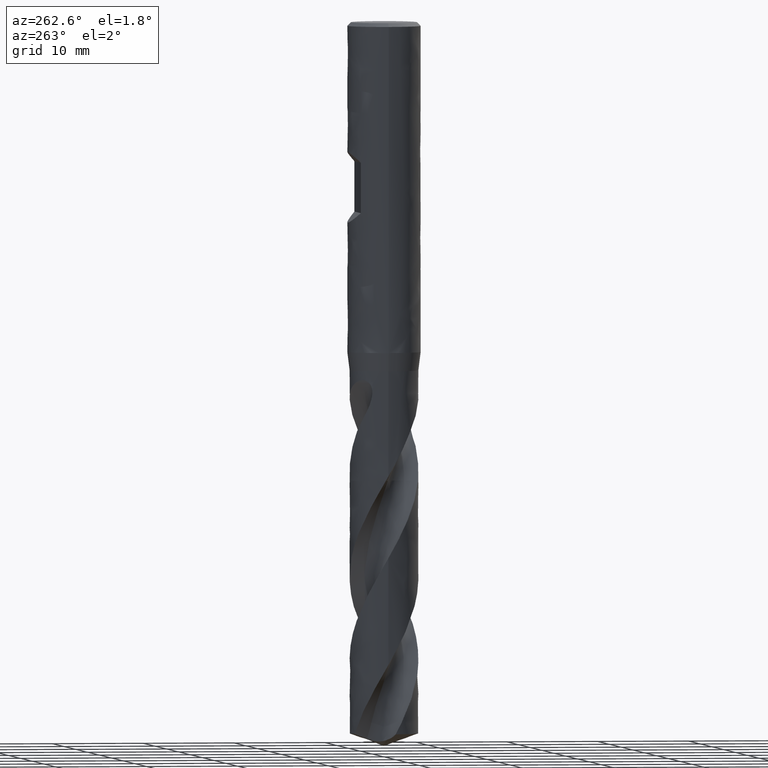
[diagram: clean part render]
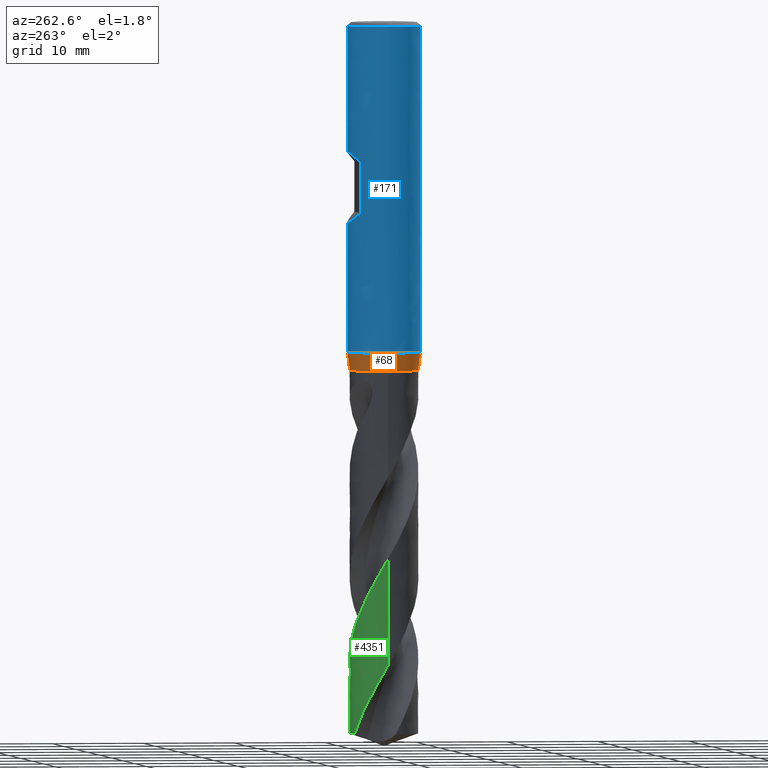
[diagram: same view with three faces highlighted in distinct colors, each labeled with its STEP entity id]
A machine part, auxiliary view with three faces highlighted in distinct colors.
Their STEP definitions:

[orange] entity #68 — the highlighted face is a freeform B-spline surface patch.
#68 = ADVANCED_FACE('', (#69), #96, .T.);
#69 = FACE_OUTER_BOUND('', #70, .T.);
#70 = EDGE_LOOP('', (#71, #81, #88, #89));
#71 = ORIENTED_EDGE('', *, *, #72, .F.);
#72 = EDGE_CURVE('', #73, #75, #77, .T.);
#73 = VERTEX_POINT('', #74);
#74 = CARTESIAN_POINT('', (-4., 2.44929359829471E-15, -36.));
#75 = VERTEX_POINT('', #76);
#76 = CARTESIAN_POINT('', (-3.75, 2.5564501932201E-15, -38.));
#77 = LINE('', #78, #79);
#78 = CARTESIAN_POINT('', (-4., 2.44929359829471E-15, -36.));
#79 = VECTOR('', #80, 2.01556443707464);
#80 = DIRECTION('', (0.25, 1.07156594925393E-16, -2.));
#81 = ORIENTED_EDGE('', *, *, #82, .T.);
#82 = EDGE_CURVE('', #73, #73, #83, .T.);
#83 = CIRCLE('', #84, 4.);
#84 = AXIS2_PLACEMENT_3D('', #85, #86, #87);
#85 = CARTESIAN_POINT('', (1.34978380439567E-31, 2.20436423846524E-15, -36.));
#86 = DIRECTION('', (3.74939945665464E-33, 6.12323399573677E-17, -1.));
#87 = DIRECTION('', (-1., 6.12323399573677E-17, 0.));
#88 = ORIENTED_EDGE('', *, *, #72, .T.);
#89 = ORIENTED_EDGE('', *, *, #90, .F.);
#90 = EDGE_CURVE('', #75, #75, #91, .T.);
#91 = CIRCLE('', #92, 3.75);
#92 = AXIS2_PLACEMENT_3D('', #93, #94, #95);
#93 = CARTESIAN_POINT('', (1.42477179352876E-31, 2.32682891837997E-15, -38.));
#94 = DIRECTION('', (3.74939945665464E-33, 6.12323399573677E-17, -1.));
#95 = DIRECTION('', (-1., 6.12323399573677E-17, 0.));
#96 = (
   BOUNDED_SURFACE ()
   B_SPLINE_SURFACE (2, 1, ((#97, #98), (#99, #100), (#101, #102), (#103, #104), (#105, #106), (#107, #108), (#109, #110), (#111, #112), (#113, #114)), .UNSPECIFIED., .T., .F., .U.)
   B_SPLINE_SURFACE_WITH_KNOTS ((3, 2, 2, 2, 3), (2, 2), (0., 0.25, 0.5, 0.75, 1.), (0., 1.), .UNSPECIFIED.)
   GEOMETRIC_REPRESENTATION_ITEM ()
   RATIONAL_B_SPLINE_SURFACE (((1., 1.), (0.707106781186548, 0.707106781186548), (1., 1.), (0.707106781186548, 0.707106781186548), (1., 1.), (0.707106781186548, 0.707106781186548), (1., 1.), (0.707106781186548, 0.707106781186548), (1., 1.)))
   REPRESENTATION_ITEM ('')
   SURFACE ()
);
#97 = CARTESIAN_POINT('', (-4., 2.44929359829471E-15, -36.));
#98 = CARTESIAN_POINT('', (-3.75, 2.5564501932201E-15, -38.));
#99 = CARTESIAN_POINT('', (-4., 4., -36.));
#100 = CARTESIAN_POINT('', (-3.75, 3.75, -38.));
#101 = CARTESIAN_POINT('', (9.86076131526265E-32, 4., -36.));
#102 = CARTESIAN_POINT('', (1.4791141972894E-31, 3.75, -38.));
#103 = CARTESIAN_POINT('', (4., 4., -36.));
#104 = CARTESIAN_POINT('', (3.75, 3.75, -38.));
#105 = CARTESIAN_POINT('', (4., 2.44929359829471E-15, -36.));
#106 = CARTESIAN_POINT('', (3.75, 2.5564501932201E-15, -38.));
#107 = CARTESIAN_POINT('', (4., -4., -36.));
#108 = CARTESIAN_POINT('', (3.75, -3.75, -38.));
#109 = CARTESIAN_POINT('', (4.89858719658941E-16, -4., -36.));
#110 = CARTESIAN_POINT('', (4.59242549680258E-16, -3.75, -38.));
#111 = CARTESIAN_POINT('', (-4., -4., -36.));
#112 = CARTESIAN_POINT('', (-3.75, -3.75, -38.));
#113 = CARTESIAN_POINT('', (-4., 2.44929359829471E-15, -36.));
#114 = CARTESIAN_POINT('', (-3.75, 2.5564501932201E-15, -38.));

[blue] entity #171 — the highlighted face is a freeform B-spline surface patch.
#73 = VERTEX_POINT('', #74);
#74 = CARTESIAN_POINT('', (-4., 2.44929359829471E-15, -36.));
#82 = EDGE_CURVE('', #73, #73, #83, .T.);
#83 = CIRCLE('', #84, 4.);
#84 = AXIS2_PLACEMENT_3D('', #85, #86, #87);
#85 = CARTESIAN_POINT('', (1.34978380439567E-31, 2.20436423846524E-15, -36.));
#86 = DIRECTION('', (3.74939945665464E-33, 6.12323399573677E-17, -1.));
#87 = DIRECTION('', (-1., 6.12323399573677E-17, 0.));
#120 = VERTEX_POINT('', #121);
#121 = CARTESIAN_POINT('', (-4., 2.69422295812418E-16, -0.399999999999999));
#137 = EDGE_CURVE('', #120, #120, #138, .T.);
#138 = CIRCLE('', #139, 4.);
#139 = AXIS2_PLACEMENT_3D('', #140, #141, #142);
#140 = CARTESIAN_POINT('', (1.49975978266185E-33, 2.44929359829471E-17, -0.399999999999999));
#141 = DIRECTION('', (3.74939945665464E-33, 6.12323399573677E-17, -1.));
#142 = DIRECTION('', (-1., 6.12323399573677E-17, 0.));
#171 = ADVANCED_FACE('', (#172, #183), #354, .T.);
#172 = FACE_OUTER_BOUND('', #173, .T.);
#173 = EDGE_LOOP('', (#174, #180, #181, #182));
#174 = ORIENTED_EDGE('', *, *, #175, .T.);
#175 = EDGE_CURVE('', #73, #120, #176, .T.);
#176 = LINE('', #177, #178);
#177 = CARTESIAN_POINT('', (-4., 2.44929359829471E-15, -36.));
#178 = VECTOR('', #179, 35.6);
#179 = DIRECTION('', (0., -2.17987130248229E-15, 35.6));
#180 = ORIENTED_EDGE('', *, *, #137, .T.);
#181 = ORIENTED_EDGE('', *, *, #175, .F.);
#182 = ORIENTED_EDGE('', *, *, #82, .F.);
#183 = FACE_BOUND('', #184, .T.);
#184 = EDGE_LOOP('', (#185, #195, #270, #278));
#185 = ORIENTED_EDGE('', *, *, #186, .F.);
#186 = EDGE_CURVE('', #187, #189, #191, .T.);
#187 = VERTEX_POINT('', #188);
#188 = CARTESIAN_POINT('', (2.75499546279118, 2.9, -15.25));
#189 = VERTEX_POINT('', #190);
#190 = CARTESIAN_POINT('', (2.75499546279118, 2.9, -20.75));
#191 = LINE('', #192, #193);
#192 = CARTESIAN_POINT('', (2.75499546279118, 2.9, -15.25));
#193 = VECTOR('', #194, 5.5);
#194 = DIRECTION('', (0., 8.88178419700125E-16, -5.5));
#195 = ORIENTED_EDGE('', *, *, #196, .F.);
#196 = EDGE_CURVE('', #197, #187, #199, .T.);
#197 = VERTEX_POINT('', #198);
#198 = CARTESIAN_POINT('', (-2.75499546279118, 2.9, -15.25));
#199 = B_SPLINE_CURVE_WITH_KNOTS('', 3, (#200, #201, #202, #203, #204, #205, #206, #207, #208, #209, #210, #211, #212, #213, #214, #215, #216, #217, #218, #219, #220, #221, #222, #223, #224, #225, #226, #227, #228, #229, #230, #231, #232, #233, #234, #235, #236, #237, #238, #239, #240, #241, #242, #243, #244, #245, #246, #247, #248, #249, #250, #251, #252, #253, #254, #255, #256, #257, #258, #259, #260, #261, #262, #263, #264, #265, #266, #267, #268, #269), .UNSPECIFIED., .F., .U., (4, 3, 3, 3, 3, 3, 3, 3, 3, 3, 3, 3, 3, 3, 3, 3, 3, 3, 3, 3, 3, 3, 3, 4), (0., 0.0275651498824212, 0.323329754227846, 0.619223800657679, 0.915270205533212, 1.21149541087732, 1.50792863848376, 1.80460015310044, 2.10153821450145, 2.39876467460959, 2.69628978664823, 2.99410761532925, 3.29009749181974, 3.58608736831022, 3.88390519699124, 4.18143030902988, 4.47865676913802, 4.77559483053904, 5.07226634515571, 5.36869957276216, 5.66492477810626, 5.96097118298179, 6.25686522941163, 6.58019498363947), .UNSPECIFIED.);
#200 = CARTESIAN_POINT('', (-2.75499546279118, 2.9, -15.25));
#201 = CARTESIAN_POINT('', (-2.7495403313511, 2.90518236633323, -15.2447263857062));
#202 = CARTESIAN_POINT('', (-2.74406521982218, 2.91035442984719, -15.2394632556375));
#203 = CARTESIAN_POINT('', (-2.73857013102126, 2.91551601564427, -15.2342107877709));
#204 = CARTESIAN_POINT('', (-2.67960971281275, 2.97089806100158, -15.1778536089774));
#205 = CARTESIAN_POINT('', (-2.61831798837026, 3.0251023412273, -15.122694932689));
#206 = CARTESIAN_POINT('', (-2.55471049779373, 3.07789770337849, -15.0689699818493));
#207 = CARTESIAN_POINT('', (-2.49107516924727, 3.13071617154582, -15.0152215181567));
#208 = CARTESIAN_POINT('', (-2.42505948854959, 3.18217572696542, -14.9628558941227));
#209 = CARTESIAN_POINT('', (-2.35670846888833, 3.23201565476873, -14.9121384151248));
#210 = CARTESIAN_POINT('', (-2.28832225468618, 3.28188124558901, -14.8613948212512));
#211 = CARTESIAN_POINT('', (-2.21752118151808, 3.33018085032992, -14.8122447863892));
#212 = CARTESIAN_POINT('', (-2.14439231660005, 3.37662280874054, -14.7649851061665));
#213 = CARTESIAN_POINT('', (-2.07121928470314, 3.42309281628059, -14.7176968829422));
#214 = CARTESIAN_POINT('', (-1.99562068806062, 3.46776202565152, -14.6722411652482));
#215 = CARTESIAN_POINT('', (-1.91774147403304, 3.51030876687135, -14.628945286836));
#216 = CARTESIAN_POINT('', (-1.83980756982381, 3.55288538626901, -14.5856190041692));
#217 = CARTESIAN_POINT('', (-1.75947339354896, 3.59339861346788, -14.5443924446584));
#218 = CARTESIAN_POINT('', (-1.6769604661359, 3.63150156202879, -14.5056186025088));
#219 = CARTESIAN_POINT('', (-1.59438121093989, 3.66963513953696, -14.466813592116));
#220 = CARTESIAN_POINT('', (-1.50947809076678, 3.70541802112886, -14.4304006672663));
#221 = CARTESIAN_POINT('', (-1.42256919709379, 3.73848858223215, -14.3967478197978));
#222 = CARTESIAN_POINT('', (-1.33558221946264, 3.77158885583323, -14.363064736672));
#223 = CARTESIAN_POINT('', (-1.2464160027603, 3.80203429897799, -14.3320832286455));
#224 = CARTESIAN_POINT('', (-1.15550315645899, 3.82946634081219, -14.3041681800707));
#225 = CARTESIAN_POINT('', (-1.06450201178593, 3.85692502579669, -14.2762260192292));
#226 = CARTESIAN_POINT('', (-0.971551110465514, 3.88142225604713, -14.251297456619));
#227 = CARTESIAN_POINT('', (-0.877208103576912, 3.90262808156492, -14.2297182517981));
#228 = CARTESIAN_POINT('', (-0.782770301221156, 3.92385521460939, -14.2081173642804));
#229 = CARTESIAN_POINT('', (-0.686708873945093, 3.94183334457734, -14.1898226863132));
#230 = CARTESIAN_POINT('', (-0.589703064917672, 3.95629249363931, -14.1751089493317));
#231 = CARTESIAN_POINT('', (-0.492601817846333, 3.97076586816795, -14.1603807364101));
#232 = CARTESIAN_POINT('', (-0.394300865590992, 3.98174917183471, -14.1492040453995));
#233 = CARTESIAN_POINT('', (-0.295578376007088, 3.98906422906892, -14.141760189078));
#234 = CARTESIAN_POINT('', (-0.197461827282699, 3.99633438779939, -14.1343620218057));
#235 = CARTESIAN_POINT('', (-0.0986632921634952, 4., -14.1306318677307));
#236 = CARTESIAN_POINT('', (1.22464679914735E-16, 4., -14.1306318677307));
#237 = CARTESIAN_POINT('', (0.0986632921634953, 4., -14.1306318677307));
#238 = CARTESIAN_POINT('', (0.197461827282699, 3.99633438779939, -14.1343620218057));
#239 = CARTESIAN_POINT('', (0.295578376007088, 3.98906422906892, -14.1417601890779));
#240 = CARTESIAN_POINT('', (0.394300865590992, 3.98174917183471, -14.1492040453995));
#241 = CARTESIAN_POINT('', (0.492601817846333, 3.97076586816795, -14.1603807364101));
#242 = CARTESIAN_POINT('', (0.589703064917672, 3.95629249363931, -14.1751089493317));
#243 = CARTESIAN_POINT('', (0.686708873945093, 3.94183334457734, -14.1898226863132));
#244 = CARTESIAN_POINT('', (0.782770301221157, 3.92385521460939, -14.2081173642804));
#245 = CARTESIAN_POINT('', (0.877208103576914, 3.90262808156492, -14.2297182517981));
#246 = CARTESIAN_POINT('', (0.971551110465516, 3.88142225604713, -14.251297456619));
#247 = CARTESIAN_POINT('', (1.06450201178593, 3.85692502579669, -14.2762260192292));
#248 = CARTESIAN_POINT('', (1.15550315645899, 3.82946634081219, -14.3041681800707));
#249 = CARTESIAN_POINT('', (1.2464160027603, 3.80203429897799, -14.3320832286456));
#250 = CARTESIAN_POINT('', (1.33558221946264, 3.77158885583323, -14.363064736672));
#251 = CARTESIAN_POINT('', (1.4225691970938, 3.73848858223215, -14.3967478197978));
#252 = CARTESIAN_POINT('', (1.50947809076678, 3.70541802112886, -14.4304006672663));
#253 = CARTESIAN_POINT('', (1.59438121093989, 3.66963513953696, -14.466813592116));
#254 = CARTESIAN_POINT('', (1.6769604661359, 3.63150156202879, -14.5056186025088));
#255 = CARTESIAN_POINT('', (1.75947339354897, 3.59339861346788, -14.5443924446584));
#256 = CARTESIAN_POINT('', (1.83980756982381, 3.55288538626901, -14.5856190041692));
#257 = CARTESIAN_POINT('', (1.91774147403305, 3.51030876687135, -14.628945286836));
#258 = CARTESIAN_POINT('', (1.99562068806062, 3.46776202565152, -14.6722411652482));
#259 = CARTESIAN_POINT('', (2.07121928470315, 3.42309281628059, -14.7176968829422));
#260 = CARTESIAN_POINT('', (2.14439231660006, 3.37662280874054, -14.7649851061665));
#261 = CARTESIAN_POINT('', (2.21752118151808, 3.33018085032992, -14.8122447863892));
#262 = CARTESIAN_POINT('', (2.28832225468618, 3.28188124558901, -14.8613948212512));
#263 = CARTESIAN_POINT('', (2.35670846888833, 3.23201565476873, -14.9121384151248));
#264 = CARTESIAN_POINT('', (2.42505948854959, 3.18217572696542, -14.9628558941227));
#265 = CARTESIAN_POINT('', (2.49107516924727, 3.13071617154582, -15.0152215181567));
#266 = CARTESIAN_POINT('', (2.55471049779373, 3.07789770337849, -15.0689699818493));
#267 = CARTESIAN_POINT('', (2.62424618256803, 3.02018183333213, -15.1277020779003));
#268 = CARTESIAN_POINT('', (2.69100864192036, 2.9607873797164, -15.1881423130012));
#269 = CARTESIAN_POINT('', (2.75499546279118, 2.9, -15.25));
#270 = ORIENTED_EDGE('', *, *, #271, .T.);
#271 = EDGE_CURVE('', #197, #272, #274, .T.);
#272 = VERTEX_POINT('', #273);
#273 = CARTESIAN_POINT('', (-2.75499546279118, 2.9, -20.75));
#274 = LINE('', #275, #276);
#275 = CARTESIAN_POINT('', (-2.75499546279118, 2.9, -15.25));
#276 = VECTOR('', #277, 5.5);
#277 = DIRECTION('', (0., 0., -5.5));
#278 = ORIENTED_EDGE('', *, *, #279, .T.);
#279 = EDGE_CURVE('', #272, #189, #280, .T.);
#280 = B_SPLINE_CURVE_WITH_KNOTS('', 3, (#281, #282, #283, #284, #285, #286, #287, #288, #289, #290, #291, #292, #293, #294, #295, #296, #297, #298, #299, #300, #301, #302, #303, #304, #305, #306, #307, #308, #309, #310, #311, #312, #313, #314, #315, #316, #317, #318, #319, #320, #321, #322, #323, #324, #325, #326, #327, #328, #329, #330, #331, #332, #333, #334, #335, #336, #337, #338, #339, #340, #341, #342, #343, #344, #345, #346, #347, #348, #349, #350, #351, #352, #353), .UNSPECIFIED., .F., .U., (4, 3, 3, 3, 3, 3, 3, 3, 3, 3, 3, 3, 3, 3, 3, 3, 3, 3, 3, 3, 3, 3, 3, 3, 4), (0., 0.443422422205693, 0.738860713972591, 1.03418677767532, 1.32938252694556, 1.62442725505235, 1.91929816542727, 2.21397155727197, 2.50842487936361, 2.80263970976592, 2.9989408510487, 3.29007345814309, 3.4872474966482, 3.68530175003223, 3.8832746562229, 4.08116298771897, 4.27896576611938, 4.57609603156437, 4.872944030885, 5.16953426674175, 5.46589607815955, 5.76205965537, 6.05805344567497, 6.35390278155854, 6.58042418211351), .UNSPECIFIED.);
#281 = CARTESIAN_POINT('', (-2.75499546279118, 2.9, -20.75));
#282 = CARTESIAN_POINT('', (-2.66724235399505, 2.98336531606178, -20.8348331619419));
#283 = CARTESIAN_POINT('', (-2.57422027727393, 3.06415258604797, -20.9170428851383));
#284 = CARTESIAN_POINT('', (-2.47599571183059, 3.14156732141782, -20.9958206921756));
#285 = CARTESIAN_POINT('', (-2.41055180017683, 3.19314630351234, -21.048307845677));
#286 = CARTESIAN_POINT('', (-2.34271971299793, 3.24329045867949, -21.0993349086891));
#287 = CARTESIAN_POINT('', (-2.27255949630797, 3.2917280166716, -21.1486253257994));
#288 = CARTESIAN_POINT('', (-2.20242593136059, 3.34014717470163, -21.1978970189722));
#289 = CARTESIAN_POINT('', (-2.12988274348655, 3.38691749931397, -21.2454908470694));
#290 = CARTESIAN_POINT('', (-2.05503738469365, 3.43173736575396, -21.2910998745108));
#291 = CARTESIAN_POINT('', (-1.98022505187324, 3.47653745515367, -21.3366887766898));
#292 = CARTESIAN_POINT('', (-1.90301056261523, 3.519448580392, -21.3803554549731));
#293 = CARTESIAN_POINT('', (-1.82356518022225, 3.56014185580879, -21.4217652328814));
#294 = CARTESIAN_POINT('', (-1.74416044182265, 3.60081431268124, -21.4631538256852));
#295 = CARTESIAN_POINT('', (-1.66240289395493, 3.63933314650406, -21.502350875752));
#296 = CARTESIAN_POINT('', (-1.5785460472355, 3.67534928636152, -21.5390011659373));
#297 = CARTESIAN_POINT('', (-1.4947386025406, 3.71134420827083, -21.5756298645816));
#298 = CARTESIAN_POINT('', (-1.40868478848897, 3.74490161629374, -21.6097781310747));
#299 = CARTESIAN_POINT('', (-1.32073858060278, 3.77566545150764, -21.6410836372246));
#300 = CARTESIAN_POINT('', (-1.23285128326053, 3.80640867964468, -21.6723681734607));
#301 = CARTESIAN_POINT('', (-1.14289702732146, 3.83442177081428, -21.7008745021349));
#302 = CARTESIAN_POINT('', (-1.0513442293651, 3.85936203424631, -21.726253898586));
#303 = CARTESIAN_POINT('', (-0.959859805419417, 3.88428367164094, -21.7516143410437));
#304 = CARTESIAN_POINT('', (-0.866574202102869, 3.90619059125, -21.7739069843951));
#305 = CARTESIAN_POINT('', (-0.772074452714003, 3.92478038104902, -21.7928240919284));
#306 = CARTESIAN_POINT('', (-0.677651243147182, 3.94335511409697, -21.8117258776005));
#307 = CARTESIAN_POINT('', (-0.581785251603101, 3.95866134366949, -21.827301609972));
#308 = CARTESIAN_POINT('', (-0.485170882582414, 3.97046712802094, -21.8393152634078));
#309 = CARTESIAN_POINT('', (-0.420709445077232, 3.97834398772498, -21.8473308140761));
#310 = CARTESIAN_POINT('', (-0.355823858528567, 3.98467660623896, -21.8537749334927));
#311 = CARTESIAN_POINT('', (-0.29074100732762, 3.98941971552983, -21.8586015565728));
#312 = CARTESIAN_POINT('', (-0.194217166337957, 3.99645418188373, -21.8657598815401));
#313 = CARTESIAN_POINT('', (-0.0970442023647982, 4., -21.8693681322693));
#314 = CARTESIAN_POINT('', (1.22464679914735E-16, 4., -21.8693681322693));
#315 = CARTESIAN_POINT('', (0.0657246795017049, 4., -21.8693681322693));
#316 = CARTESIAN_POINT('', (0.131489701268733, 3.99837709119683, -21.8677166482731));
#317 = CARTESIAN_POINT('', (0.197052250671387, 3.99514335293558, -21.8644259723115));
#318 = CARTESIAN_POINT('', (0.262907481260272, 3.9918951787752, -21.8611206062723));
#319 = CARTESIAN_POINT('', (0.32863921924959, 3.98701784499982, -21.8561573953644));
#320 = CARTESIAN_POINT('', (0.394008672407501, 3.98054734503531, -21.8495729667643));
#321 = CARTESIAN_POINT('', (0.459351276247839, 3.97407950271135, -21.8429912425989));
#322 = CARTESIAN_POINT('', (0.524410480681414, 3.96601220841524, -21.8347819042819));
#323 = CARTESIAN_POINT('', (0.58896163430491, 3.95640293616776, -21.8250034378018));
#324 = CARTESIAN_POINT('', (0.653485211457423, 3.94679776903386, -21.8152291487156));
#325 = CARTESIAN_POINT('', (0.717576028180887, 3.93564105020771, -21.8038759891568));
#326 = CARTESIAN_POINT('', (0.781028734224063, 3.92300829929231, -21.7910208084317));
#327 = CARTESIAN_POINT('', (0.844454007748155, 3.91038100989625, -21.7781711853891));
#328 = CARTESIAN_POINT('', (0.907311809061335, 3.89626530832649, -21.7638069431147));
#329 = CARTESIAN_POINT('', (0.969419520729964, 3.88075067388098, -21.7480191364037));
#330 = CARTESIAN_POINT('', (1.06271487787062, 3.85744530128533, -21.7243034169544));
#331 = CARTESIAN_POINT('', (1.1544914336299, 3.83093536499364, -21.6973267097968));
#332 = CARTESIAN_POINT('', (1.24423289780537, 3.8015634278569, -21.6674376094205));
#333 = CARTESIAN_POINT('', (1.33388910989368, 3.77221939330641, -21.6375769029223));
#334 = CARTESIAN_POINT('', (1.42170364387654, 3.73995917363383, -21.6047486648846));
#335 = CARTESIAN_POINT('', (1.50728302186432, 3.70514478691452, -21.5693212875772));
#336 = CARTESIAN_POINT('', (1.59278808829549, 3.67036063074058, -21.5339246730963));
#337 = CARTESIAN_POINT('', (1.67622194287628, 3.6329637909704, -21.4958693724724));
#338 = CARTESIAN_POINT('', (1.75730026868264, 3.59331264513516, -21.4555200733306));
#339 = CARTESIAN_POINT('', (1.83831615052138, 3.55369203736101, -21.4152018499456));
#340 = CARTESIAN_POINT('', (1.91711291663925, 3.51175746479679, -21.3725289188831));
#341 = CARTESIAN_POINT('', (1.99349629595741, 3.4678483989362, -21.3278467288449));
#342 = CARTESIAN_POINT('', (2.06982858300231, 3.42396870352257, -21.2831944263906));
#343 = CARTESIAN_POINT('', (2.14385956949714, 3.37805601840628, -21.2364733385851));
#344 = CARTESIAN_POINT('', (2.21546518868423, 3.33042249537931, -21.1880011133995));
#345 = CARTESIAN_POINT('', (2.28702975725797, 3.28281628006029, -21.1395566767395));
#346 = CARTESIAN_POINT('', (2.35626036779493, 3.23343335123207, -21.0893042432772));
#347 = CARTESIAN_POINT('', (2.42308530146576, 3.18255520326368, -21.0375302637639));
#348 = CARTESIAN_POINT('', (2.4898776224351, 3.13170188545614, -20.9857815516058));
#349 = CARTESIAN_POINT('', (2.55433855419146, 3.07930087109134, -20.9324578919889));
#350 = CARTESIAN_POINT('', (2.61643396066481, 3.02560296957151, -20.8778145104152));
#351 = CARTESIAN_POINT('', (2.66397822301836, 2.98448838054326, -20.8359760006611));
#352 = CARTESIAN_POINT('', (2.710166973946, 2.9425869942663, -20.7933368402098));
#353 = CARTESIAN_POINT('', (2.75499546279118, 2.9, -20.75));
#354 = (
   BOUNDED_SURFACE ()
   B_SPLINE_SURFACE (1, 2, ((#355, #356, #357, #358, #359, #360, #361, #362, #363), (#364, #365, #366, #367, #368, #369, #370, #371, #372)), .UNSPECIFIED., .F., .T., .U.)
   B_SPLINE_SURFACE_WITH_KNOTS ((2, 2), (3, 2, 2, 2, 3), (0., 1.), (0., 6.28318530717959, 12.5663706143592, 18.8495559215388, 25.1327412287183), .UNSPECIFIED.)
   GEOMETRIC_REPRESENTATION_ITEM ()
   RATIONAL_B_SPLINE_SURFACE (((1., 0.707106781186548, 1., 0.707106781186548, 1., 0.707106781186548, 1., 0.707106781186548, 1.), (1., 0.707106781186548, 1., 0.707106781186548, 1., 0.707106781186548, 1., 0.707106781186548, 1.)))
   REPRESENTATION_ITEM ('')
   SURFACE ()
);
#355 = CARTESIAN_POINT('', (-4., 2.44929359829471E-15, -36.));
#356 = CARTESIAN_POINT('', (-4., 4., -36.));
#357 = CARTESIAN_POINT('', (9.86076131526265E-32, 4., -36.));
#358 = CARTESIAN_POINT('', (4., 4., -36.));
#359 = CARTESIAN_POINT('', (4., 2.44929359829471E-15, -36.));
#360 = CARTESIAN_POINT('', (4., -4., -36.));
#361 = CARTESIAN_POINT('', (4.89858719658941E-16, -4., -36.));
#362 = CARTESIAN_POINT('', (-4., -4., -36.));
#363 = CARTESIAN_POINT('', (-4., 2.44929359829471E-15, -36.));
#364 = CARTESIAN_POINT('', (-4., 2.69422295812418E-16, -0.399999999999999));
#365 = CARTESIAN_POINT('', (-4., 4., -0.399999999999998));
#366 = CARTESIAN_POINT('', (0., 4., -0.399999999999998));
#367 = CARTESIAN_POINT('', (4., 4., -0.399999999999998));
#368 = CARTESIAN_POINT('', (4., 2.69422295812418E-16, -0.399999999999999));
#369 = CARTESIAN_POINT('', (4., -4., -0.399999999999999));
#370 = CARTESIAN_POINT('', (4.89858719658941E-16, -4., -0.399999999999999));
#371 = CARTESIAN_POINT('', (-4., -4., -0.399999999999999));
#372 = CARTESIAN_POINT('', (-4., 2.69422295812418E-16, -0.399999999999999));

[green] entity #4351 — the highlighted face is a freeform B-spline surface patch.
#2800 = VERTEX_POINT('', #2801);
#2801 = CARTESIAN_POINT('', (-3.75, 4.51867119545947E-15, -70.0455008514381));
#2916 = EDGE_CURVE('', #2917, #2800, #2919, .T.);
#2917 = VERTEX_POINT('', #2918);
#2918 = CARTESIAN_POINT('', (-1.5221107578736, 3.42719693638482, -77.6351116215018));
#2919 = B_SPLINE_CURVE_WITH_KNOTS('', 3, (#2920, #2921, #2922, #2923, #2924, #2925, #2926, #2927, #2928, #2929, #2930, #2931, #2932, #2933, #2934, #2935, #2936, #2937, #2938, #2939, #2940, #2941, #2942, #2943, #2944, #2945, #2946, #2947, #2948, #2949, #2950, #2951, #2952, #2953, #2954, #2955, #2956, #2957, #2958, #2959, #2960, #2961, #2962), .UNSPECIFIED., .F., .U., (4, 3, 3, 3, 3, 3, 3, 3, 3, 3, 3, 3, 3, 3, 4), (0., 0.66561593831297, 1.331069818709, 1.99636416962053, 2.66150093696938, 3.32648136471202, 3.99130600834453, 4.65597470329282, 5.32048666550956, 5.98484076220309, 6.64903524772549, 7.31306767066533, 7.97693481026115, 8.64063260041699, 8.73383498124135), .UNSPECIFIED.);
#2920 = CARTESIAN_POINT('', (-1.5221107578736, 3.42719693638482, -77.6351116215017));
#2921 = CARTESIAN_POINT('', (-1.62236692302693, 3.38267046464841, -77.4422560539828));
#2922 = CARTESIAN_POINT('', (-1.72069883412994, 3.33372664299403, -77.2493600066725));
#2923 = CARTESIAN_POINT('', (-1.81668139565207, 3.28057444766792, -77.0565145574775));
#2924 = CARTESIAN_POINT('', (-1.91264058824163, 3.2274351933391, -76.8637160604811));
#2925 = CARTESIAN_POINT('', (-2.00629581587175, 3.17006513541412, -76.6708769067175));
#2926 = CARTESIAN_POINT('', (-2.09724262560069, 3.10870927707362, -76.4780885671205));
#2927 = CARTESIAN_POINT('', (-2.18816763262007, 3.04736812759385, -76.2853464447376));
#2928 = CARTESIAN_POINT('', (-2.2764270200649, 2.98201508665881, -76.0925636074895));
#2929 = CARTESIAN_POINT('', (-2.36163944318695, 2.91292964906186, -75.8998315019145));
#2930 = CARTESIAN_POINT('', (-2.44683168264564, 2.84386057524339, -75.7071450474289));
#2931 = CARTESIAN_POINT('', (-2.52901775202632, 2.77102892566939, -75.5144181584115));
#2932 = CARTESIAN_POINT('', (-2.60784156161221, 2.69474718471474, -75.3217416746268));
#2933 = CARTESIAN_POINT('', (-2.68664684375539, 2.61848337369258, -75.1291104792204));
#2934 = CARTESIAN_POINT('', (-2.76212866593491, 2.53873502392703, -74.9364391814636));
#2935 = CARTESIAN_POINT('', (-2.83395898228344, 2.45584537109628, -74.7438179730886));
#2936 = CARTESIAN_POINT('', (-2.90577247103608, 2.37297513671796, -74.5512418898365));
#2937 = CARTESIAN_POINT('', (-2.97397062898739, 2.28692527945759, -74.3586258586149));
#2938 = CARTESIAN_POINT('', (-3.03825656558671, 2.19806665996946, -74.1660598573279));
#2939 = CARTESIAN_POINT('', (-3.10252742255966, 2.10922888415029, -73.9735390264701));
#2940 = CARTESIAN_POINT('', (-3.16291856480814, 2.01754131901503, -73.7809779923776));
#2941 = CARTESIAN_POINT('', (-3.21916738439107, 1.9233983860014, -73.5884673634715));
#2942 = CARTESIAN_POINT('', (-3.27540294017625, 1.82927765243714, -73.3960021296878));
#2943 = CARTESIAN_POINT('', (-3.32752425428568, 1.73265904736925, -73.2034962752513));
#2944 = CARTESIAN_POINT('', (-3.37530496920152, 1.63395727143753, -73.0110411398388));
#2945 = CARTESIAN_POINT('', (-3.42307433303868, 1.53527894370297, -72.8186317252446));
#2946 = CARTESIAN_POINT('', (-3.46652703645686, 1.43447324000703, -72.6261816290163));
#2947 = CARTESIAN_POINT('', (-3.50547400442724, 1.33197297430724, -72.4337822097662));
#2948 = CARTESIAN_POINT('', (-3.54441161538274, 1.22949733431163, -72.2414290145054));
#2949 = CARTESIAN_POINT('', (-3.57886362290163, 1.12528058170072, -72.0490353592525));
#2950 = CARTESIAN_POINT('', (-3.60867937070205, 1.01977115053801, -71.8566921057048));
#2951 = CARTESIAN_POINT('', (-3.63848784349913, 0.914287463538013, -71.6643957836584));
#2952 = CARTESIAN_POINT('', (-3.66367633767484, 0.807461994098565, -71.4720593153241));
#2953 = CARTESIAN_POINT('', (-3.68413383541045, 0.699755587890689, -71.2797729414067));
#2954 = CARTESIAN_POINT('', (-3.70458624110007, 0.592075990727634, -71.0875344292107));
#2955 = CARTESIAN_POINT('', (-3.72031978559446, 0.483464315157626, -70.8952559469514));
#2956 = CARTESIAN_POINT('', (-3.7312641760821, 0.374389701096421, -70.7030274605107));
#2957 = CARTESIAN_POINT('', (-3.7422057747063, 0.265342911465295, -70.5108480106688));
#2958 = CARTESIAN_POINT('', (-3.74836590894739, 0.155781364131959, -70.3186284032261));
#2959 = CARTESIAN_POINT('', (-3.74971567389717, 0.0461775370868198, -70.1264591000518));
#2960 = CARTESIAN_POINT('', (-3.74990521996578, 0.0307859872284578, -70.0994729674432));
#2961 = CARTESIAN_POINT('', (-3.75, 0.0153930374441927, -70.07248680123));
#2962 = CARTESIAN_POINT('', (-3.75, 4.4766056334747E-15, -70.0455008514382));
#3110 = VERTEX_POINT('', #3111);
#3111 = CARTESIAN_POINT('', (-3.75, 3.80580972195708E-15, -58.403589501999));
#3148 = EDGE_CURVE('', #3110, #2800, #3149, .T.);
#3149 = LINE('', #3150, #3151);
#3150 = CARTESIAN_POINT('', (-3.75, 3.80580972195708E-15, -58.403589501999));
#3151 = VECTOR('', #3152, 11.6419113494392);
#3152 = DIRECTION('', (0., 7.12861473502397E-16, -11.6419113494392));
#3229 = VERTEX_POINT('', #3230);
#3230 = CARTESIAN_POINT('', (3.66180923674555, 0.808488165457594, -77.6351116215018));
#3348 = EDGE_CURVE('', #3349, #3229, #3351, .T.);
#3349 = VERTEX_POINT('', #3350);
#3350 = CARTESIAN_POINT('', (3.43617038302737, 1.5017433531751, -76.3470629619583));
#3351 = B_SPLINE_CURVE_WITH_KNOTS('', 3, (#3352, #3353, #3354, #3355, #3356, #3357, #3358, #3359, #3360, #3361), .UNSPECIFIED., .F., .U., (4, 3, 3, 4), (0., 0.664293426355225, 1.32842970530104, 1.48052746733497), .UNSPECIFIED.);
#3352 = CARTESIAN_POINT('', (3.43617038302735, 1.50174335317513, -76.3470629619582));
#3353 = CARTESIAN_POINT('', (3.47991329027428, 1.40165429199725, -76.5396778331338));
#3354 = CARTESIAN_POINT('', (3.51928408531011, 1.29964048826157, -76.7323444475237));
#3355 = CARTESIAN_POINT('', (3.55411745909509, 1.19613924229379, -76.9249733105057));
#3356 = CARTESIAN_POINT('', (3.58894259258408, 1.09266248091675, -77.1175566045786));
#3357 = CARTESIAN_POINT('', (3.61924889566016, 0.987650045064816, -77.3101908126515));
#3358 = CARTESIAN_POINT('', (3.64490951693936, 0.881552388303815, -77.5027872170025));
#3359 = CARTESIAN_POINT('', (3.65078620699936, 0.857254338849255, -77.5468948542544));
#3360 = CARTESIAN_POINT('', (3.65641985113987, 0.832897801658143, -77.5910033621771));
#3361 = CARTESIAN_POINT('', (3.66180923674555, 0.808488165457577, -77.6351116215018));
#3773 = EDGE_CURVE('', #2917, #3229, #3774, .T.);
#3774 = CIRCLE('', #3775, 3.75);
#3775 = AXIS2_PLACEMENT_3D('', #3776, #3777, #3778);
#3776 = CARTESIAN_POINT('', (2.91085045330981E-31, 4.75377954743598E-15, -77.6351116215018));
#3777 = DIRECTION('', (3.74939945665464E-33, 6.12323399573677E-17, -1.));
#3778 = DIRECTION('', (-1., 6.12323399573677E-17, 0.));
#4351 = ADVANCED_FACE('', (#4352), #4461, .T.);
#4352 = FACE_OUTER_BOUND('', #4353, .T.);
#4353 = EDGE_LOOP('', (#4354, #4355, #4356, #4459, #4460));
#4354 = ORIENTED_EDGE('', *, *, #2916, .T.);
#4355 = ORIENTED_EDGE('', *, *, #3148, .F.);
#4356 = ORIENTED_EDGE('', *, *, #4357, .F.);
#4357 = EDGE_CURVE('', #3349, #3110, #4358, .T.);
#4358 = B_SPLINE_CURVE_WITH_KNOTS('', 3, (#4359, #4360, #4361, #4362, #4363, #4364, #4365, #4366, #4367, #4368, #4369, #4370, #4371, #4372, #4373, #4374, #4375, #4376, #4377, #4378, #4379, #4380, #4381, #4382, #4383, #4384, #4385, #4386, #4387, #4388, #4389, #4390, #4391, #4392, #4393, #4394, #4395, #4396, #4397, #4398, #4399, #4400, #4401, #4402, #4403, #4404, #4405, #4406, #4407, #4408, #4409, #4410, #4411, #4412, #4413, #4414, #4415, #4416, #4417, #4418, #4419, #4420, #4421, #4422, #4423, #4424, #4425, #4426, #4427, #4428, #4429, #4430, #4431, #4432, #4433, #4434, #4435, #4436, #4437, #4438, #4439, #4440, #4441, #4442, #4443, #4444, #4445, #4446, #4447, #4448, #4449, #4450, #4451, #4452, #4453, #4454, #4455, #4456, #4457, #4458), .UNSPECIFIED., .F., .U., (4, 3, 3, 3, 3, 3, 3, 3, 3, 3, 3, 3, 3, 3, 3, 3, 3, 3, 3, 3, 3, 3, 3, 3, 3, 3, 3, 3, 3, 3, 3, 3, 3, 4), (0., 0.665623746619993, 1.33108682501064, 1.99639172940907, 2.66154023414655, 3.32653341411126, 3.99137164156622, 4.65605462177273, 5.32058170541503, 5.98495169749106, 6.64916273908606, 7.31321225353223, 7.97709688122002, 8.6408124339636, 8.77212380136817, 8.83050839770454, 9.49695077095031, 10.1632076325, 10.8292853739047, 11.4951893903486, 12.1609241541341, 12.8264932723906, 13.4918995293268, 14.1571449904897, 14.8222312118686, 15.4871591350711, 16.1519290656607, 16.8165406545535, 17.4809928699091, 18.1452840079341, 18.8094118345016, 19.4733734656774, 20.1371652798352, 20.6561446305538), .UNSPECIFIED.);
#4359 = CARTESIAN_POINT('', (3.43617038302737, 1.5017433531751, -76.3470629619583));
#4360 = CARTESIAN_POINT('', (3.39233987582288, 1.60203285364845, -76.1540623584297));
#4361 = CARTESIAN_POINT('', (3.34409839089751, 1.70043877911857, -75.9610252484343));
#4362 = CARTESIAN_POINT('', (3.29164857635621, 1.7965382405538, -75.7680427603795));
#4363 = CARTESIAN_POINT('', (3.23921142214874, 1.89261450550544, -75.5751068544288));
#4364 = CARTESIAN_POINT('', (3.18254457129826, 1.98642827242808, -75.3821343578392));
#4365 = CARTESIAN_POINT('', (3.12188699617625, 2.07757589105805, -75.1892164016198));
#4366 = CARTESIAN_POINT('', (3.06124383875994, 2.16870184480053, -74.9963443000907));
#4367 = CARTESIAN_POINT('', (2.99658429339979, 2.2572042424431, -74.8034359548078));
#4368 = CARTESIAN_POINT('', (2.92818265617895, 2.34270064926205, -74.6105817093743));
#4369 = CARTESIAN_POINT('', (2.85979709879277, 2.42817695761344, -74.4177728000542));
#4370 = CARTESIAN_POINT('', (2.78763906174785, 2.51068877655894, -74.2249281264749));
#4371 = CARTESIAN_POINT('', (2.71201645649318, 2.58987774609347, -74.0321370791201));
#4372 = CARTESIAN_POINT('', (2.63641151054902, 2.66904822350389, -73.839391052126));
#4373 = CARTESIAN_POINT('', (2.55730716281946, 2.74493553226432, -73.6466095086107));
#4374 = CARTESIAN_POINT('', (2.4750420820872, 2.81720902524067, -73.4538814567559));
#4375 = CARTESIAN_POINT('', (2.39279617024435, 2.88946567750427, -73.2611983131743));
#4376 = CARTESIAN_POINT('', (2.30735158779352, 2.95814486888506, -73.0684793168775));
#4377 = CARTESIAN_POINT('', (2.21907354711392, 3.02294766618598, -72.8758143417848));
#4378 = CARTESIAN_POINT('', (2.13081612035564, 3.08773533130052, -72.6831943561437));
#4379 = CARTESIAN_POINT('', (2.03968592444749, 3.14867830883338, -72.4905378313698));
#4380 = CARTESIAN_POINT('', (1.94607126595968, 3.20551191353364, -72.2979358820278));
#4381 = CARTESIAN_POINT('', (1.85247856410992, 3.26233218832481, -72.1053791060738));
#4382 = CARTESIAN_POINT('', (1.75636048807424, 3.31507056490658, -71.9127855958654));
#4383 = CARTESIAN_POINT('', (1.6581268504734, 3.36349748739897, -71.7202466775805));
#4384 = CARTESIAN_POINT('', (1.55991643491478, 3.41191296195901, -71.5277532747321));
#4385 = CARTESIAN_POINT('', (1.45954678730404, 3.45604099462424, -71.3352234180556));
#4386 = CARTESIAN_POINT('', (1.35744744822706, 3.49568826203109, -71.1427477749513));
#4387 = CARTESIAN_POINT('', (1.25537253641086, 3.53532604383158, -70.950318181633));
#4388 = CARTESIAN_POINT('', (1.15152088583003, 3.57050373520817, -70.757852588766));
#4389 = CARTESIAN_POINT('', (1.04633897188147, 3.60106578056029, -70.5654407489146));
#4390 = CARTESIAN_POINT('', (0.941182636752904, 3.63162039363601, -70.3730757010224));
#4391 = CARTESIAN_POINT('', (0.834646032537813, 3.65757628855474, -70.1806749412073));
#4392 = CARTESIAN_POINT('', (0.727188484569452, 3.67881732461808, -69.9883277430992));
#4393 = CARTESIAN_POINT('', (0.619757618838425, 3.70005308642777, -69.7960283057458));
#4394 = CARTESIAN_POINT('', (0.511354535113942, 3.71658658267648, -69.6036929162556));
#4395 = CARTESIAN_POINT('', (0.402445916824917, 3.7283424311659, -69.4114115209349));
#4396 = CARTESIAN_POINT('', (0.293565034859035, 3.74009528573237, -69.2191790949153));
#4397 = CARTESIAN_POINT('', (0.18412823875056, 3.74707844465788, -69.0269100764304));
#4398 = CARTESIAN_POINT('', (0.0746050489120399, 3.7492578047767, -68.8346956052307));
#4399 = CARTESIAN_POINT('', (0.0529366704014607, 3.74968897556378, -68.7966673490841));
#4400 = CARTESIAN_POINT('', (0.0312637468495069, 3.74993231057597, -68.7586390887679));
#4401 = CARTESIAN_POINT('', (0.00958996784158276, 3.74998773764886, -68.7206115062464));
#4402 = CARTESIAN_POINT('', (-4.67823002589494E-5, 3.75001238202917, -68.7037034113948));
#4403 = CARTESIAN_POINT('', (-0.00968375754566308, 3.74999987956507, -68.6867953498876));
#4404 = CARTESIAN_POINT('', (-0.0193206363444214, 3.7499502280712, -68.6698873833068));
#4405 = CARTESIAN_POINT('', (-0.129322670790711, 3.749383471401, -68.4768880978451));
#4406 = CARTESIAN_POINT('', (-0.239341582455041, 3.74397160642903, -68.283851973293));
#4407 = CARTESIAN_POINT('', (-0.348899661695261, 3.73373392545174, -68.0908708598503));
#4408 = CARTESIAN_POINT('', (-0.458427244217507, 3.72349909424756, -67.8979434648612));
#4409 = CARTESIAN_POINT('', (-0.567544848856645, 3.70843643984608, -67.7049787253866));
#4410 = CARTESIAN_POINT('', (-0.675779678600481, 3.68860703057276, -67.5120693191919));
#4411 = CARTESIAN_POINT('', (-0.783985409899695, 3.66878295234647, -67.3192117758187));
#4412 = CARTESIAN_POINT('', (-0.891358392881637, 3.64418558502802, -67.1263169217282));
#4413 = CARTESIAN_POINT('', (-0.997432608109984, 3.61491745303804, -66.9334772377601));
#4414 = CARTESIAN_POINT('', (-1.10347915729015, 3.58565695469915, -66.7406878498227));
#4415 = CARTESIAN_POINT('', (-1.20827711289448, 3.55171442133692, -66.5478615045708));
#4416 = CARTESIAN_POINT('', (-1.31136990513156, 3.51323340697929, -66.3550899216543));
#4417 = CARTESIAN_POINT('', (-1.41443649429926, 3.47476217333151, -66.1623673354432));
#4418 = CARTESIAN_POINT('', (-1.51584827530145, 3.43173624257124, -65.9696081857405));
#4419 = CARTESIAN_POINT('', (-1.61516173451201, 3.38433931090962, -65.7769034360698));
#4420 = CARTESIAN_POINT('', (-1.71445048293477, 3.33695417236778, -65.5842466344438));
#4421 = CARTESIAN_POINT('', (-1.81169046579386, 3.28517704011824, -65.3915533852832));
#4422 = CARTESIAN_POINT('', (-1.90645574910995, 3.22923001297301, -65.1989145486941));
#4423 = CARTESIAN_POINT('', (-2.00119784385143, 3.17329667577591, -65.0063228498319));
#4424 = CARTESIAN_POINT('', (-2.09351221153338, 3.11316851351445, -64.8136943002196));
#4425 = CARTESIAN_POINT('', (-2.18299534058996, 3.04910336705113, -64.6211206991743));
#4426 = CARTESIAN_POINT('', (-2.27245684600115, 2.98505370196429, -64.4285936336415));
#4427 = CARTESIAN_POINT('', (-2.35913024157746, 2.91703910379931, -64.236029182769));
#4428 = CARTESIAN_POINT('', (-2.44263741930758, 2.84535102189492, -64.043520061709));
#4429 = CARTESIAN_POINT('', (-2.52612460792733, 2.77368009996431, -63.8510570215509));
#4430 = CARTESIAN_POINT('', (-2.60648554377187, 2.69830443049731, -63.6585565547181));
#4431 = CARTESIAN_POINT('', (-2.6833690661771, 2.61954775766426, -63.4661113313227));
#4432 = CARTESIAN_POINT('', (-2.76023428941901, 2.54080982982589, -63.2737119121056));
#4433 = CARTESIAN_POINT('', (-2.83365966204943, 2.45865566446161, -63.0812753652305));
#4434 = CARTESIAN_POINT('', (-2.90332299780884, 2.37343960748832, -62.8888937038795));
#4435 = CARTESIAN_POINT('', (-2.97296978095848, 2.28824379858559, -62.6965577540715));
#4436 = CARTESIAN_POINT('', (-3.03888971276862, 2.19994662499317, -62.5041850564155));
#4437 = CARTESIAN_POINT('', (-3.10079215150279, 2.10893054252119, -62.3118668860403));
#4438 = CARTESIAN_POINT('', (-3.16267984568138, 2.01793613919003, -62.1195945239727));
#4439 = CARTESIAN_POINT('', (-3.22058221082621, 1.92417961009676, -61.9272855732809));
#4440 = CARTESIAN_POINT('', (-3.27424307827915, 1.82806790474016, -61.7350311045655));
#4441 = CARTESIAN_POINT('', (-3.32789107788206, 1.73197924692396, -61.5428227383785));
#4442 = CARTESIAN_POINT('', (-3.37732568087526, 1.63348991985443, -61.3505774562763));
#4443 = CARTESIAN_POINT('', (-3.42232803460809, 1.533026687157, -61.158387131106));
#4444 = CARTESIAN_POINT('', (-3.4673194788145, 1.43258780888109, -60.9662433969529));
#4445 = CARTESIAN_POINT('', (-3.50790201880119, 1.33012875658331, -60.7740622259443));
#4446 = CARTESIAN_POINT('', (-3.54389574889309, 1.22609254176739, -60.5819364070228));
#4447 = CARTESIAN_POINT('', (-3.57988063017129, 1.1220819035472, -60.389857820927));
#4448 = CARTESIAN_POINT('', (-3.61129563290502, 1.01644665932823, -60.1977417177586));
#4449 = CARTESIAN_POINT('', (-3.63800052177127, 0.909643998272016, -60.0056809245652));
#4450 = CARTESIAN_POINT('', (-3.6646987278435, 0.80286806416411, -59.8136681938342));
#4451 = CARTESIAN_POINT('', (-3.68670166489187, 0.694875196195424, -59.621618208098));
#4452 = CARTESIAN_POINT('', (-3.70390964004971, 0.586134266484729, -59.4296232111021));
#4453 = CARTESIAN_POINT('', (-3.72111321403903, 0.477421148713088, -59.2376773193802));
#4454 = CARTESIAN_POINT('', (-3.7335325036813, 0.367908090091074, -59.0456945353494));
#4455 = CARTESIAN_POINT('', (-3.74110928900268, 0.258072252943659, -58.853766393888));
#4456 = CARTESIAN_POINT('', (-3.74703312693312, 0.172198142669005, -58.7037091920427));
#4457 = CARTESIAN_POINT('', (-3.75, 0.0860974749591905, -58.5536356392454));
#4458 = CARTESIAN_POINT('', (-3.75, 2.94885632482454E-15, -58.403589501999));
#4459 = ORIENTED_EDGE('', *, *, #3348, .T.);
#4460 = ORIENTED_EDGE('', *, *, #3773, .F.);
#4461 = (
   BOUNDED_SURFACE ()
   B_SPLINE_SURFACE (2, 1, ((#4462, #4463), (#4464, #4465), (#4466, #4467), (#4468, #4469), (#4470, #4471)), .UNSPECIFIED., .F., .F., .U.)
   B_SPLINE_SURFACE_WITH_KNOTS ((3, 2, 3), (2, 2), (0., 5.89048622548086, 10.9115651232936), (0.514785720722688, 1.), .UNSPECIFIED.)
   GEOMETRIC_REPRESENTATION_ITEM ()
   RATIONAL_B_SPLINE_SURFACE (((1., 1.), (0.707106781186548, 0.707106781186548), (1., 1.), (0.750336406197669, 0.750336406197669), (0.926301717856583, 0.926301717856583)))
   REPRESENTATION_ITEM ('')
   SURFACE ()
);
#4462 = CARTESIAN_POINT('', (-3.75, 3.80580972195708E-15, -58.403589501999));
#4463 = CARTESIAN_POINT('', (-3.75, 4.98340082227611E-15, -77.6351116215018));
#4464 = CARTESIAN_POINT('', (-3.75, 3.75, -58.403589501999));
#4465 = CARTESIAN_POINT('', (-3.75, 3.75, -77.6351116215018));
#4466 = CARTESIAN_POINT('', (1.97215226305253E-31, 3.75, -58.403589501999));
#4467 = CARTESIAN_POINT('', (2.95822839457879E-31, 3.75, -77.6351116215018));
#4468 = CARTESIAN_POINT('', (3.01235500441789, 3.75, -58.403589501999));
#4469 = CARTESIAN_POINT('', (3.01235500441789, 3.75, -77.6351116215018));
#4470 = CARTESIAN_POINT('', (3.66180923674555, 0.808488165457575, -58.403589501999));
#4471 = CARTESIAN_POINT('', (3.66180923674555, 0.808488165457576, -77.6351116215018));